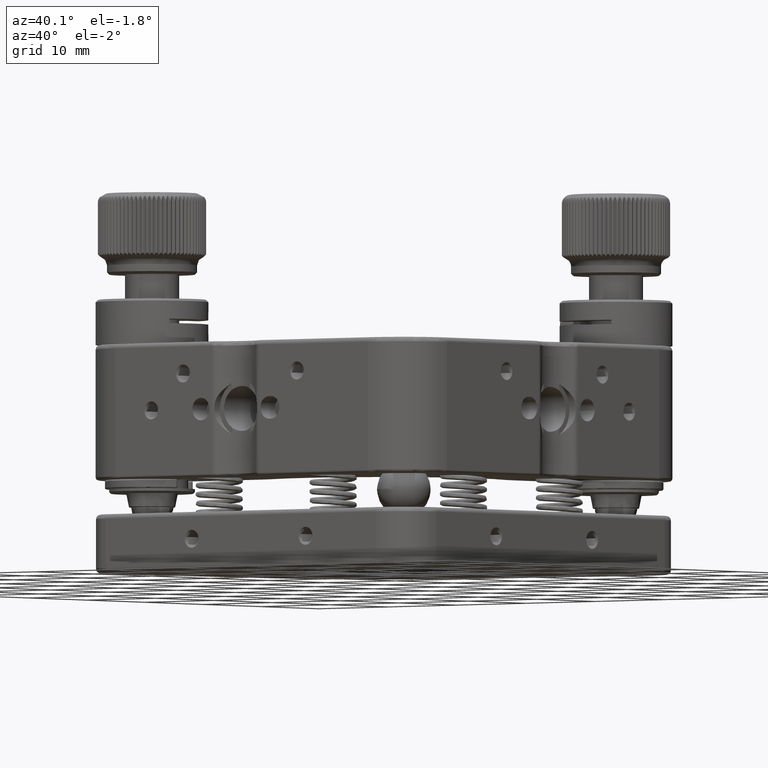
[diagram: clean part render]
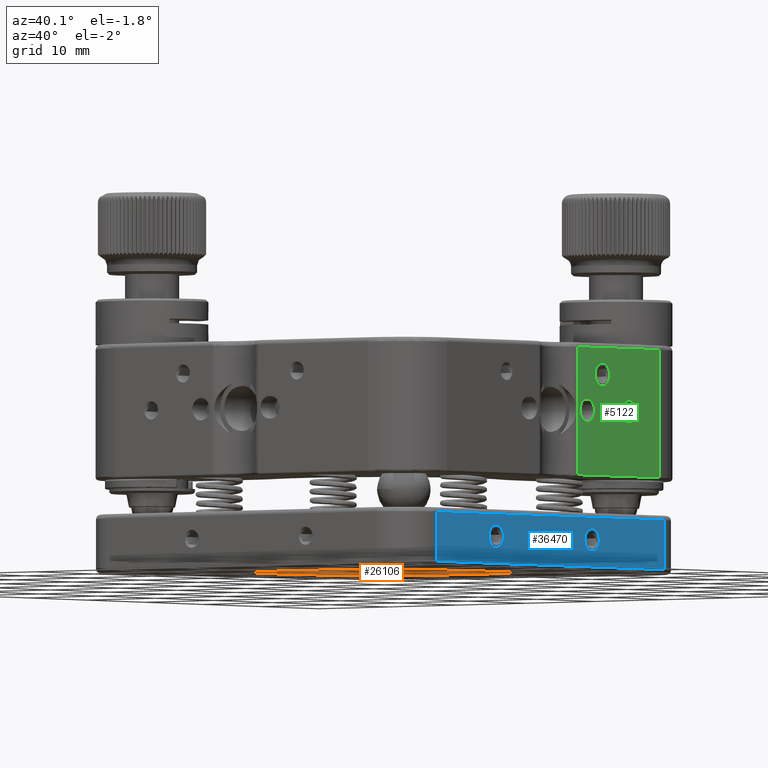
[diagram: same view with three faces highlighted in distinct colors, each labeled with its STEP entity id]
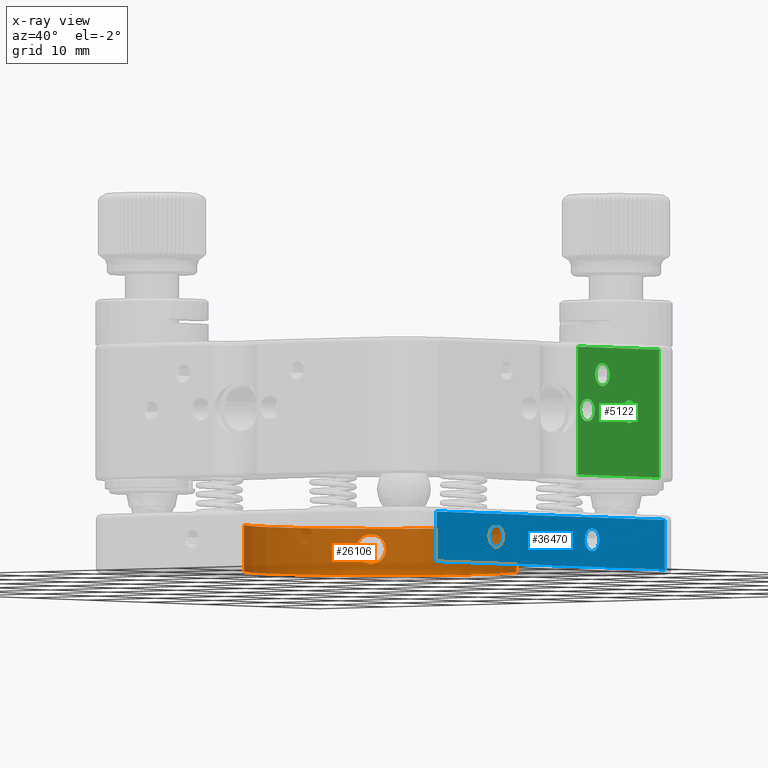
[diagram: x-ray of the same camera — body ghosted, the three highlighted faces saturated]
A machine part, auxiliary view with three faces highlighted in distinct colors.
The next image is the same camera in x-ray (body ghosted, the three faces saturated) — at least one of them is partly hidden behind the body in this view.
Their STEP definitions:

[orange] entity #26106 — the highlighted cylindrical surface (partial cylindrical patch) has radius 15.6 mm, axis along (0, 0, -1).
#74 = DIRECTION ( 'NONE',  ( -1.479070813065935758E-16, -0.000000000000000000, 1.000000000000000000 ) ) ;
#153 = DIRECTION ( 'NONE',  ( -1.000000000000000000, 0.000000000000000000, -1.112002228190260705E-16 ) ) ;
#158 = CARTESIAN_POINT ( 'NONE',  ( -12.89617749626797405, 10.87272912918535361, -15.37877628552127973 ) ) ;
#278 = CIRCLE ( 'NONE', #22479, 15.60000000000000320 ) ;
#1237 = CARTESIAN_POINT ( 'NONE',  ( -12.92943477078179093, 10.83249368249108002, -13.81814587336142885 ) ) ;
#2863 = CARTESIAN_POINT ( 'NONE',  ( -14.26387123883804087, -7.147791343464469094, -12.30000000000000249 ) ) ;
#2900 = CARTESIAN_POINT ( 'NONE',  ( -11.01698984015083838, 12.77486796080869702, -13.45945215219168567 ) ) ;
#3382 = CARTESIAN_POINT ( 'NONE',  ( -12.50018746425876515, 11.33089950316223415, -15.98193173968371816 ) ) ;
#3417 = CARTESIAN_POINT ( 'NONE',  ( -14.26387123844715887, -7.147791344350620690, -14.87500000000000000 ) ) ;
#3461 = CARTESIAN_POINT ( 'NONE',  ( -11.33089950277964064, 12.50018746460318475, -13.11806825981120461 ) ) ;
#3665 = CARTESIAN_POINT ( 'NONE',  ( -11.01718442328854408, 12.77469555878181851, -15.64070726591405780 ) ) ;
#3801 = B_SPLINE_CURVE_WITH_KNOTS ( 'NONE', 3,
 ( #55566, #43084, #21375, #13229, #21659, #29758, #17583, #44210, #3665, #30049, #48558, #30336, #43931, #43643, #17303, #39869, #39017, #47993, #3382, #8577, #21085, #52641, #7725, #158, #12372, #8864, #56709, #56426 ),
 .UNSPECIFIED., .F., .F.,
 ( 4, 2, 2, 2, 2, 2, 2, 2, 2, 2, 2, 2, 2, 4 ),
 ( 0.000000000000000000, 0.0003225692268030234456, 0.0006451384536060468912, 0.0009677076804090702826, 0.001290276907212093782, 0.001935415360818147938, 0.002580553814424202310, 0.002903123041227231339, 0.003225692268030260369, 0.003548261494833289832, 0.003870830721636318861, 0.004193399948439348324, 0.004515969175242376919, 0.005161107628848436712 ),
 .UNSPECIFIED. ) ;
#5011 = CARTESIAN_POINT ( 'NONE',  ( -10.70226419297689091, 13.03571657097689318, -14.55000000055890474 ) ) ;
#5287 = ORIENTED_EDGE ( 'NONE', *, *, #12694, .T. ) ;
#7725 = CARTESIAN_POINT ( 'NONE',  ( -12.81910175186824929, 10.96472126959706017, -15.55731241035691426 ) ) ;
#8093 = CARTESIAN_POINT ( 'NONE',  ( -10.83268001711736339, 12.92928104144850820, -13.81765729586019198 ) ) ;
#8517 = VERTEX_POINT ( 'NONE', #2863 ) ;
#8577 = CARTESIAN_POINT ( 'NONE',  ( -12.61913286895988584, 11.19708397803379540, -15.86260586277759721 ) ) ;
#8864 = CARTESIAN_POINT ( 'NONE',  ( -13.00857959025857724, 10.73611910728794250, -14.98270859638637020 ) ) ;
#9007 = VERTEX_POINT ( 'NONE', #14791 ) ;
#9411 = ORIENTED_EDGE ( 'NONE', *, *, #38025, .T. ) ;
#9636 = CARTESIAN_POINT ( 'NONE',  ( -0.8999999999999984679, 0.9000000000000000222, -12.30000000000000249 ) ) ;
#9660 = CARTESIAN_POINT ( 'NONE',  ( -12.77469555928449729, 11.01718442269879716, -13.45929273390593117 ) ) ;
#9937 = CARTESIAN_POINT ( 'NONE',  ( -12.62547952951085684, 11.19059720703238092, -13.23116850529881994 ) ) ;
#10135 = VERTEX_POINT ( 'NONE', #52652 ) ;
#10656 = CARTESIAN_POINT ( 'NONE',  ( 7.147791343634970040, 14.26387123873536389, -12.30000000000000071 ) ) ;
#11064 = AXIS2_PLACEMENT_3D ( 'NONE', #52351, #35797, #153 ) ;
#11892 = CARTESIAN_POINT ( 'NONE',  ( -10.70226419290793984, 13.03571657103258552, -14.33184606139806760 ) ) ;
#12372 = CARTESIAN_POINT ( 'NONE',  ( -12.92928104091876307, 10.83268001775894795, -15.28234270423024199 ) ) ;
#12539 = VERTEX_POINT ( 'NONE', #10656 ) ;
#12651 = CYLINDRICAL_SURFACE ( 'NONE', #11064, 15.60000000000000320 ) ;
#12694 = EDGE_CURVE ( 'NONE', #45957, #10135, #3801, .T. ) ;
#13229 = CARTESIAN_POINT ( 'NONE',  ( -10.74340552859169939, 13.00238870202707098, -14.97727416277104240 ) ) ;
#13504 = FACE_OUTER_BOUND ( 'NONE', #34781, .T. ) ;
#13941 = ORIENTED_EDGE ( 'NONE', *, *, #47733, .T. ) ;
#13985 = DIRECTION ( 'NONE',  ( -1.000000000000000000, 0.000000000000000000, -1.112002228190260705E-16 ) ) ;
#14004 = CARTESIAN_POINT ( 'NONE',  ( -13.03571657075480772, 10.70226419325184253, -14.55000000008938521 ) ) ;
#14791 = CARTESIAN_POINT ( 'NONE',  ( -14.26387123857906225, -7.147791344005455016, -17.44999999999999929 ) ) ;
#16486 = LINE ( 'NONE', #54088, #19076 ) ;
#17303 = CARTESIAN_POINT ( 'NONE',  ( -12.08271670427970435, 11.77741017178557570, -16.18937083899212936 ) ) ;
#17511 = DIRECTION ( 'NONE',  ( -1.000000000000000000, 6.950013926189129407E-18, 0.000000000000000000 ) ) ;
#17583 = CARTESIAN_POINT ( 'NONE',  ( -10.87173128035102110, 12.89700736941461123, -15.37658760324475438 ) ) ;
#17792 = CARTESIAN_POINT ( 'NONE',  ( -0.8999999999999984679, 0.9000000000000000222, -17.44999999999999929 ) ) ;
#18716 = ORIENTED_EDGE ( 'NONE', *, *, #52881, .F. ) ;
#19076 = VECTOR ( 'NONE', #53784, 1000.000000000000000 ) ;
#20885 = CARTESIAN_POINT ( 'NONE',  ( -11.62465554078573504, 12.22929690955924009, -12.95270628968948223 ) ) ;
#21085 = CARTESIAN_POINT ( 'NONE',  ( -12.67404891436861902, 11.13414601588262975, -15.79447253132260798 ) ) ;
#21375 = CARTESIAN_POINT ( 'NONE',  ( -10.71065003252000913, 13.02895670017325003, -14.76631642669597255 ) ) ;
#21659 = CARTESIAN_POINT ( 'NONE',  ( -10.76817546831022376, 12.98225329083360435, -15.08209127237178748 ) ) ;
#22429 = DIRECTION ( 'NONE',  ( -0.000000000000000000, -0.000000000000000000, 1.000000000000000000 ) ) ;
#22479 = AXIS2_PLACEMENT_3D ( 'NONE', #17792, #22429, #17511 ) ;
#23291 = CARTESIAN_POINT ( 'NONE',  ( -12.23419323587050478, 11.62079851885638426, -12.94359277523254725 ) ) ;
#25800 = CARTESIAN_POINT ( 'NONE',  ( -11.54964305612972986, 12.29978526415824192, -12.98384718555920259 ) ) ;
#26106 = ADVANCED_FACE ( 'NONE', ( #26839, #13504 ), #12651, .F. ) ;
#26437 = EDGE_CURVE ( 'NONE', #10135, #45957, #54175, .T. ) ;
#26605 = EDGE_LOOP ( 'NONE', ( #5287, #39274 ) ) ;
#26630 = VECTOR ( 'NONE', #30372, 1000.000000000000000 ) ;
#26839 = FACE_BOUND ( 'NONE', #26605, .T. ) ;
#27625 = CARTESIAN_POINT ( 'NONE',  ( -12.50349495240168984, 11.32872773062728378, -13.10825394103617825 ) ) ;
#28872 = CIRCLE ( 'NONE', #38129, 15.60000000000000320 ) ;
#29567 = CARTESIAN_POINT ( 'NONE',  ( -10.70226419297689091, 13.03571657097689318, -14.55000000055890474 ) ) ;
#29758 = CARTESIAN_POINT ( 'NONE',  ( -10.83249368314527850, 12.92943477024164523, -15.28185412676121224 ) ) ;
#29840 = CARTESIAN_POINT ( 'NONE',  ( -10.73611910664980407, 13.00857959077690928, -14.11729140391082460 ) ) ;
#30049 = CARTESIAN_POINT ( 'NONE',  ( -11.19059720753667975, 12.62547952906738047, -15.86883149432663132 ) ) ;
#30336 = CARTESIAN_POINT ( 'NONE',  ( -11.62079851908454486, 12.23419323565250671, -16.15640722412630836 ) ) ;
#30372 = DIRECTION ( 'NONE',  ( 0.000000000000000000, 0.000000000000000000, -1.000000000000000000 ) ) ;
#31685 = CARTESIAN_POINT ( 'NONE',  ( -13.00238870255133250, 10.74340552794706660, -14.12272583758993072 ) ) ;
#31976 = CARTESIAN_POINT ( 'NONE',  ( -13.02895670066677702, 10.71065003190979326, -14.33368357382240710 ) ) ;
#33353 = CARTESIAN_POINT ( 'NONE',  ( 7.147791343088001348, 14.26387123905560017, -17.44999999999999929 ) ) ;
#33911 = CARTESIAN_POINT ( 'NONE',  ( -11.13414601536464410, 12.67404891481907647, -13.30552746835092037 ) ) ;
#34757 = CARTESIAN_POINT ( 'NONE',  ( -10.87272912855911500, 12.89617749678868108, -13.72122371447743205 ) ) ;
#34781 = EDGE_LOOP ( 'NONE', ( #13941, #9411, #18716, #43876 ) ) ;
#35797 = DIRECTION ( 'NONE',  ( 1.479070813065935758E-16, 0.000000000000000000, -1.000000000000000000 ) ) ;
#36307 = CARTESIAN_POINT ( 'NONE',  ( -13.03571657098435388, 10.70226419296765030, -14.44092282747048372 ) ) ;
#36603 = CARTESIAN_POINT ( 'NONE',  ( -12.98225329136644213, 10.76817546765783895, -14.01790872790497566 ) ) ;
#38025 = EDGE_CURVE ( 'NONE', #8517, #9007, #38490, .T. ) ;
#38129 = AXIS2_PLACEMENT_3D ( 'NONE', #9636, #74, #13985 ) ;
#38490 = LINE ( 'NONE', #3417, #26630 ) ;
#39017 = CARTESIAN_POINT ( 'NONE',  ( -12.29978526393625415, 11.54964305636669764, -16.11615281381918763 ) ) ;
#39274 = ORIENTED_EDGE ( 'NONE', *, *, #26437, .T. ) ;
#39397 = VERTEX_POINT ( 'NONE', #33353 ) ;
#39869 = CARTESIAN_POINT ( 'NONE',  ( -12.22929690938266312, 11.62465554097161480, -16.14729370966331956 ) ) ;
#40943 = CARTESIAN_POINT ( 'NONE',  ( -12.08396421278638222, 11.77774432312089381, -12.90015401167703502 ) ) ;
#42294 = EDGE_CURVE ( 'NONE', #39397, #12539, #16486, .T. ) ;
#43084 = CARTESIAN_POINT ( 'NONE',  ( -10.70226419356179548, 13.03571657050444976, -14.65907717327059601 ) ) ;
#43643 = CARTESIAN_POINT ( 'NONE',  ( -12.00617829094278477, 11.85556470647652638, -16.20007637576244619 ) ) ;
#43876 = ORIENTED_EDGE ( 'NONE', *, *, #42294, .T. ) ;
#43931 = CARTESIAN_POINT ( 'NONE',  ( -11.77774432324589071, 12.08396421266191112, -16.19984598763883454 ) ) ;
#44210 = CARTESIAN_POINT ( 'NONE',  ( -10.96385381455648300, 12.81983460239933237, -15.55587590779851759 ) ) ;
#45957 = VERTEX_POINT ( 'NONE', #5011 ) ;
#47222 = CARTESIAN_POINT ( 'NONE',  ( -11.40261323489400347, 12.43538540882449439, -13.06646296888442649 ) ) ;
#47498 = CARTESIAN_POINT ( 'NONE',  ( -11.19708397757063345, 12.61913286936723289, -13.23739413681681576 ) ) ;
#47733 = EDGE_CURVE ( 'NONE', #12539, #8517, #28872, .T. ) ;
#47782 = CARTESIAN_POINT ( 'NONE',  ( -11.77741017169529592, 12.08271670436814915, -12.91062916032785779 ) ) ;
#47993 = CARTESIAN_POINT ( 'NONE',  ( -12.43538540851046470, 11.40261323523824899, -16.03353703057087998 ) ) ;
#48558 = CARTESIAN_POINT ( 'NONE',  ( -11.32872773104556074, 12.50349495202362782, -15.99174605847575314 ) ) ;
#49341 = CARTESIAN_POINT ( 'NONE',  ( -12.81983460291667321, 10.96385381394384240, -13.54412409209222190 ) ) ;
#49623 = CARTESIAN_POINT ( 'NONE',  ( -12.89700736995205865, 10.87173127970452846, -13.72341239680040559 ) ) ;
#52351 = CARTESIAN_POINT ( 'NONE',  ( -0.8999999999999984679, 0.9000000000000000222, -12.29999999999999893 ) ) ;
#52434 = CARTESIAN_POINT ( 'NONE',  ( -11.85556470644186433, 12.00617829097769018, -12.89992362354828259 ) ) ;
#52641 = CARTESIAN_POINT ( 'NONE',  ( -12.77486796032642857, 11.01698984071665599, -15.64054784759368033 ) ) ;
#52652 = CARTESIAN_POINT ( 'NONE',  ( -13.03571657075480772, 10.70226419325184253, -14.55000000008938521 ) ) ;
#52723 = CARTESIAN_POINT ( 'NONE',  ( -10.96472126900848210, 12.81910175236535743, -13.54268758949241480 ) ) ;
#52881 = EDGE_CURVE ( 'NONE', #39397, #9007, #278, .T. ) ;
#53784 = DIRECTION ( 'NONE',  ( -0.000000000000000000, -0.000000000000000000, 1.000000000000000000 ) ) ;
#54088 = CARTESIAN_POINT ( 'NONE',  ( 7.147791344691622584, 14.26387123824180847, -14.87499999999999822 ) ) ;
#54175 = B_SPLINE_CURVE_WITH_KNOTS ( 'NONE', 3,
 ( #14004, #36307, #31976, #31685, #36603, #1237, #49623, #49341, #9660, #9937, #27625, #23291, #40943, #52434, #47782, #20885, #25800, #47222, #3461, #47498, #33911, #2900, #52723, #34757, #8093, #29840, #11892, #29567 ),
 .UNSPECIFIED., .F., .F.,
 ( 4, 2, 2, 2, 2, 2, 2, 2, 2, 2, 2, 2, 2, 4 ),
 ( 1.475606767567916609E-13, 0.0003225692271670950115, 0.0006451384541866293483, 0.0009677076812061636852, 0.001290276908225698130, 0.001935415362264770490, 0.002580553816303842850, 0.002903123043323377079, 0.003225692270342911307, 0.003548261497362445969, 0.003870830724381980198, 0.004193399951401514426, 0.004515969178421048655, 0.005161107632460117112 ),
 .UNSPECIFIED. ) ;
#55566 = CARTESIAN_POINT ( 'NONE',  ( -10.70226419297689091, 13.03571657097689318, -14.55000000055890474 ) ) ;
#56426 = CARTESIAN_POINT ( 'NONE',  ( -13.03571657075480772, 10.70226419325184253, -14.55000000008938521 ) ) ;
#56709 = CARTESIAN_POINT ( 'NONE',  ( -13.03571657050796873, 10.70226419355744341, -14.76815393930029785 ) ) ;

[blue] entity #36470 — the highlighted planar face has unit normal (-1, 0, 0).
#1531 = EDGE_CURVE ( 'NONE', #2097, #45973, #49837, .T. ) ;
#1865 = CARTESIAN_POINT ( 'NONE',  ( 23.00000000000000000, -7.999999999999996447, -15.54999999999999716 ) ) ;
#2097 = VERTEX_POINT ( 'NONE', #10589 ) ;
#2445 = FACE_BOUND ( 'NONE', #11998, .T. ) ;
#2762 = CARTESIAN_POINT ( 'NONE',  ( 23.00000000000000000, -7.999999997563334908, -13.05000000000000071 ) ) ;
#3756 = DIRECTION ( 'NONE',  ( 0.000000000000000000, 0.000000000000000000, 1.000000000000000000 ) ) ;
#4878 = LINE ( 'NONE', #18219, #18465 ) ;
#5610 = ORIENTED_EDGE ( 'NONE', *, *, #36054, .F. ) ;
#5775 = AXIS2_PLACEMENT_3D ( 'NONE', #46587, #25161, #51227 ) ;
#6156 = CARTESIAN_POINT ( 'NONE',  ( 23.00000000006654943, -18.25000000027875302, -17.30000000011819949 ) ) ;
#7616 = CIRCLE ( 'NONE', #41843, 1.249999999999996003 ) ;
#7917 = VERTEX_POINT ( 'NONE', #40080 ) ;
#7986 = VERTEX_POINT ( 'NONE', #6156 ) ;
#8420 = ORIENTED_EDGE ( 'NONE', *, *, #1531, .T. ) ;
#8556 = CARTESIAN_POINT ( 'NONE',  ( 23.00000000000000000, -7.999999999999996447, -15.54999999999999716 ) ) ;
#8723 = DIRECTION ( 'NONE',  ( 1.000000000000000000, -0.000000000000000000, -0.000000000000000000 ) ) ;
#9860 = EDGE_CURVE ( 'NONE', #17970, #7917, #15989, .T. ) ;
#10564 = VERTEX_POINT ( 'NONE', #2762 ) ;
#10589 = CARTESIAN_POINT ( 'NONE',  ( 23.00000000000023093, 20.98861278799999042, -17.30000000013998829 ) ) ;
#11998 = EDGE_LOOP ( 'NONE', ( #28746, #21154 ) ) ;
#12355 = CARTESIAN_POINT ( 'NONE',  ( 22.99999999999999289, -10.49999999874999013, -15.54999999955103540 ) ) ;
#15989 = CIRCLE ( 'NONE', #5775, 1.249999999999990674 ) ;
#16514 = AXIS2_PLACEMENT_3D ( 'NONE', #33454, #51128, #24780 ) ;
#16523 = DIRECTION ( 'NONE',  ( 0.000000000000000000, 1.000000000000000000, 0.000000000000000000 ) ) ;
#17051 = ORIENTED_EDGE ( 'NONE', *, *, #28884, .F. ) ;
#17388 = LINE ( 'NONE', #26371, #53727 ) ;
#17720 = CARTESIAN_POINT ( 'NONE',  ( 22.99999999999999645, -7.999999999999991118, -14.29999999999999893 ) ) ;
#17953 = VERTEX_POINT ( 'NONE', #1865 ) ;
#17970 = VERTEX_POINT ( 'NONE', #32589 ) ;
#18219 = CARTESIAN_POINT ( 'NONE',  ( 23.00000000000000000, 1.369306394000000093, -11.79999999999999893 ) ) ;
#18465 = VECTOR ( 'NONE', #35887, 1000.000000000000000 ) ;
#19921 = ORIENTED_EDGE ( 'NONE', *, *, #26755, .F. ) ;
#21154 = ORIENTED_EDGE ( 'NONE', *, *, #9860, .F. ) ;
#22559 = CARTESIAN_POINT ( 'NONE',  ( 23.00000000000000000, 8.500000000000003553, -15.54999999999999893 ) ) ;
#24780 = DIRECTION ( 'NONE',  ( 0.000000000000000000, 0.000000000000000000, 1.000000000000000000 ) ) ;
#24882 =( BOUNDED_CURVE ( )  B_SPLINE_CURVE ( 3, ( #43624, #52051, #12355, #8556 ),
 .UNSPECIFIED., .F., .F. ) 
 B_SPLINE_CURVE_WITH_KNOTS ( ( 4, 4 ),
 ( 2.907560734690652508E-12, 0.003907269273745669035 ),
 .UNSPECIFIED. ) 
 CURVE ( )  GEOMETRIC_REPRESENTATION_ITEM ( )  RATIONAL_B_SPLINE_CURVE ( ( 1.000000000000000000, 0.3333333335299311084, 0.3333333335299311084, 1.000000000000000000 ) ) 
 REPRESENTATION_ITEM ( '' )  );
#25161 = DIRECTION ( 'NONE',  ( 1.000000000000000000, -0.000000000000000000, -0.000000000000000000 ) ) ;
#25337 = EDGE_CURVE ( 'NONE', #7986, #2097, #33611, .T. ) ;
#26371 = CARTESIAN_POINT ( 'NONE',  ( 23.00000000000000000, -18.25000000000000000, -14.55000000000000071 ) ) ;
#26755 = EDGE_CURVE ( 'NONE', #35343, #45973, #4878, .T. ) ;
#27832 = CARTESIAN_POINT ( 'NONE',  ( 23.00000000000000000, 20.98861278799999752, -14.55000000000000071 ) ) ;
#28188 = CARTESIAN_POINT ( 'NONE',  ( 23.00000000000000000, 20.98861279196020746, -11.79999999999999893 ) ) ;
#28746 = ORIENTED_EDGE ( 'NONE', *, *, #55675, .F. ) ;
#28884 = EDGE_CURVE ( 'NONE', #17953, #10564, #7616, .T. ) ;
#29827 = CARTESIAN_POINT ( 'NONE',  ( 23.00000000000000000, 1.369306393999998317, -17.30000000010255334 ) ) ;
#32284 = VECTOR ( 'NONE', #16523, 1000.000000000000000 ) ;
#32393 = EDGE_LOOP ( 'NONE', ( #5610, #17051 ) ) ;
#32589 = CARTESIAN_POINT ( 'NONE',  ( 23.00000000000000000, 8.500000000000003553, -15.54999999999999893 ) ) ;
#33454 = CARTESIAN_POINT ( 'NONE',  ( 23.00000000000000000, -18.25000000000000000, -17.30000000000000071 ) ) ;
#33611 = LINE ( 'NONE', #29827, #32284 ) ;
#33743 = FACE_OUTER_BOUND ( 'NONE', #48808, .T. ) ;
#35343 = VERTEX_POINT ( 'NONE', #44603 ) ;
#35887 = DIRECTION ( 'NONE',  ( 0.000000000000000000, 1.000000000000000000, 0.000000000000000000 ) ) ;
#36054 = EDGE_CURVE ( 'NONE', #10564, #17953, #24882, .T. ) ;
#36470 = ADVANCED_FACE ( 'NONE', ( #33743, #2445, #37800 ), #55481, .F. ) ;
#37800 = FACE_BOUND ( 'NONE', #32393, .T. ) ;
#40080 = CARTESIAN_POINT ( 'NONE',  ( 23.00000000000000000, 8.500000000128752120, -13.05000000000000071 ) ) ;
#41843 = AXIS2_PLACEMENT_3D ( 'NONE', #17720, #8723, #53051 ) ;
#42897 =( BOUNDED_CURVE ( )  B_SPLINE_CURVE ( 3, ( #53255, #49178, #48617, #22559 ),
 .UNSPECIFIED., .F., .F. ) 
 B_SPLINE_CURVE_WITH_KNOTS ( ( 4, 4 ),
 ( 6.324027942760700155E-13, 0.003907269269798323112 ),
 .UNSPECIFIED. ) 
 CURVE ( )  GEOMETRIC_REPRESENTATION_ITEM ( )  RATIONAL_B_SPLINE_CURVE ( ( 1.000000000000000000, 0.3333333335299311084, 0.3333333335299311084, 1.000000000000000000 ) ) 
 REPRESENTATION_ITEM ( '' )  );
#43624 = CARTESIAN_POINT ( 'NONE',  ( 23.00000000000000000, -7.999999997563334908, -13.05000000000000071 ) ) ;
#44603 = CARTESIAN_POINT ( 'NONE',  ( 23.00000000000000000, -18.25000000000000000, -11.79999999997436078 ) ) ;
#45490 = DIRECTION ( 'NONE',  ( 0.000000000000000000, 0.000000000000000000, 1.000000000000000000 ) ) ;
#45829 = ORIENTED_EDGE ( 'NONE', *, *, #57123, .F. ) ;
#45973 = VERTEX_POINT ( 'NONE', #28188 ) ;
#46587 = CARTESIAN_POINT ( 'NONE',  ( 23.00000000000000000, 8.500000000000008882, -14.30000000000000959 ) ) ;
#48617 = CARTESIAN_POINT ( 'NONE',  ( 22.99999999999999289, 6.000000001250000992, -15.54999999955104073 ) ) ;
#48808 = EDGE_LOOP ( 'NONE', ( #48927, #8420, #19921, #45829 ) ) ;
#48927 = ORIENTED_EDGE ( 'NONE', *, *, #25337, .T. ) ;
#49178 = CARTESIAN_POINT ( 'NONE',  ( 22.99999999999999289, 6.000000000961726698, -13.05000000102551994 ) ) ;
#49837 = LINE ( 'NONE', #27832, #50765 ) ;
#50765 = VECTOR ( 'NONE', #45490, 1000.000000000000000 ) ;
#51128 = DIRECTION ( 'NONE',  ( -1.000000000000000000, 0.000000000000000000, 0.000000000000000000 ) ) ;
#51227 = DIRECTION ( 'NONE',  ( 0.000000000000000000, 0.000000000000000000, -1.000000000000000000 ) ) ;
#52051 = CARTESIAN_POINT ( 'NONE',  ( 22.99999999999999289, -10.49999999903827508, -13.05000000102552349 ) ) ;
#53051 = DIRECTION ( 'NONE',  ( 0.000000000000000000, 0.000000000000000000, -1.000000000000000000 ) ) ;
#53255 = CARTESIAN_POINT ( 'NONE',  ( 23.00000000000000000, 8.500000000128752120, -13.05000000000000071 ) ) ;
#53727 = VECTOR ( 'NONE', #3756, 1000.000000000000000 ) ;
#55481 = PLANE ( 'NONE',  #16514 ) ;
#55675 = EDGE_CURVE ( 'NONE', #7917, #17970, #42897, .T. ) ;
#57123 = EDGE_CURVE ( 'NONE', #7986, #35343, #17388, .T. ) ;

[green] entity #5122 — the highlighted planar face has unit normal (-1, 0, 0).
#138 = EDGE_CURVE ( 'NONE', #15432, #16597, #30112, .T. ) ;
#317 = EDGE_CURVE ( 'NONE', #16597, #15432, #48666, .T. ) ;
#1964 = LINE ( 'NONE', #37322, #48367 ) ;
#2845 = EDGE_LOOP ( 'NONE', ( #16283 ) ) ;
#5122 = ADVANCED_FACE ( 'NONE', ( #39402, #30148, #44027, #47798 ), #30710, .F. ) ;
#5904 = CARTESIAN_POINT ( 'NONE',  ( 24.49999999999998934, 5.899999999999976374, 2.174094056518758572E-14 ) ) ;
#5966 = CARTESIAN_POINT ( 'NONE',  ( 24.50000000000001421, 18.25000000000000355, -7.200000000000034817 ) ) ;
#7842 = CARTESIAN_POINT ( 'NONE',  ( 24.50000000000000000, 4.276388603000001787, -0.1000000000000002554 ) ) ;
#8049 = CIRCLE ( 'NONE', #54339, 1.249999999999999334 ) ;
#9801 = EDGE_CURVE ( 'NONE', #42417, #49448, #14446, .T. ) ;
#10121 = CARTESIAN_POINT ( 'NONE',  ( 24.49999999999999645, 8.499999999335170031, 2.750000000000000888 ) ) ;
#10132 = ORIENTED_EDGE ( 'NONE', *, *, #317, .F. ) ;
#10523 = DIRECTION ( 'NONE',  ( 8.326672684688678786E-15, 1.000000000000000000, 0.000000000000000000 ) ) ;
#10715 = CARTESIAN_POINT ( 'NONE',  ( 24.49999999999998224, 8.499999999999948486, 4.000000000000047073 ) ) ;
#11082 = LINE ( 'NONE', #23851, #25759 ) ;
#11638 = ORIENTED_EDGE ( 'NONE', *, *, #43817, .F. ) ;
#12495 = CARTESIAN_POINT ( 'NONE',  ( 24.49999999999998579, 6.000000000961729363, 5.249999998974483439 ) ) ;
#12751 = CARTESIAN_POINT ( 'NONE',  ( 24.50000000000000000, 18.25000000000000000, -7.200000000000001066 ) ) ;
#14446 = LINE ( 'NONE', #32698, #36577 ) ;
#15134 = EDGE_LOOP ( 'NONE', ( #37575, #16673, #33262, #52858 ) ) ;
#15432 = VERTEX_POINT ( 'NONE', #23100 ) ;
#15699 = CARTESIAN_POINT ( 'NONE',  ( 24.50000000000000000, 4.276388603000001787, -7.200000000030765790 ) ) ;
#16283 = ORIENTED_EDGE ( 'NONE', *, *, #55980, .F. ) ;
#16287 = DIRECTION ( 'NONE',  ( 0.000000000000000000, 0.000000000000000000, 1.000000000000000000 ) ) ;
#16597 = VERTEX_POINT ( 'NONE', #10121 ) ;
#16673 = ORIENTED_EDGE ( 'NONE', *, *, #45086, .F. ) ;
#19671 = DIRECTION ( 'NONE',  ( 0.000000000000000000, -1.000000000000000000, 0.000000000000000000 ) ) ;
#20815 = DIRECTION ( 'NONE',  ( 0.000000000000000000, -1.000000000000000000, 0.000000000000000000 ) ) ;
#21783 = CARTESIAN_POINT ( 'NONE',  ( 24.49999999999998579, 6.000000001250003656, 2.750000000448969750 ) ) ;
#23100 = CARTESIAN_POINT ( 'NONE',  ( 24.49999999999998224, 8.499999998137667490, 5.250000000000023981 ) ) ;
#23551 = EDGE_CURVE ( 'NONE', #42417, #24004, #11082, .T. ) ;
#23726 = AXIS2_PLACEMENT_3D ( 'NONE', #10715, #28392, #46915 ) ;
#23851 = CARTESIAN_POINT ( 'NONE',  ( 24.50000000000000000, 18.25000000000000000, -0.1000000000000002554 ) ) ;
#24004 = VERTEX_POINT ( 'NONE', #37097 ) ;
#24762 = AXIS2_PLACEMENT_3D ( 'NONE', #12751, #56812, #30435 ) ;
#25100 = VERTEX_POINT ( 'NONE', #25670 ) ;
#25670 = CARTESIAN_POINT ( 'NONE',  ( 24.49999999999999645, 14.34999999999994991, 4.953806002943188778E-14 ) ) ;
#25759 = VECTOR ( 'NONE', #28756, 1000.000000000000000 ) ;
#28392 = DIRECTION ( 'NONE',  ( 1.000000000000000000, -1.421451940244120323E-14, 1.421451939952571848E-14 ) ) ;
#28756 = DIRECTION ( 'NONE',  ( 0.000000000000000000, 0.000000000000000000, 1.000000000000000000 ) ) ;
#29641 = EDGE_CURVE ( 'NONE', #24004, #43202, #1964, .T. ) ;
#30112 =( BOUNDED_CURVE ( )  B_SPLINE_CURVE ( 3, ( #43199, #12495, #21783, #35362 ),
 .UNSPECIFIED., .F., .F. ) 
 B_SPLINE_CURVE_WITH_KNOTS ( ( 4, 4 ),
 ( 2.660806454109044855E-13, 0.003907269266975453570 ),
 .UNSPECIFIED. ) 
 CURVE ( )  GEOMETRIC_REPRESENTATION_ITEM ( )  RATIONAL_B_SPLINE_CURVE ( ( 1.000000000000000000, 0.3333333335299311084, 0.3333333335299311084, 1.000000000000000000 ) ) 
 REPRESENTATION_ITEM ( '' )  );
#30148 = FACE_BOUND ( 'NONE', #52954, .T. ) ;
#30435 = DIRECTION ( 'NONE',  ( 0.000000000000000000, -1.000000000000000000, 0.000000000000000000 ) ) ;
#30710 = PLANE ( 'NONE',  #24762 ) ;
#31434 = DIRECTION ( 'NONE',  ( 1.000000000000000000, -9.476346268294134963E-15, 9.476346266350473201E-15 ) ) ;
#31869 = AXIS2_PLACEMENT_3D ( 'NONE', #54282, #42110, #10523 ) ;
#32698 = CARTESIAN_POINT ( 'NONE',  ( 24.50000000000000000, 11.26319430149999867, -7.200000000000001066 ) ) ;
#33262 = ORIENTED_EDGE ( 'NONE', *, *, #9801, .F. ) ;
#35362 = CARTESIAN_POINT ( 'NONE',  ( 24.49999999999999645, 8.499999999335170031, 2.750000000000000888 ) ) ;
#36577 = VECTOR ( 'NONE', #19671, 1000.000000000000000 ) ;
#37097 = CARTESIAN_POINT ( 'NONE',  ( 24.50000000013309531, 18.25000000137969991, 7.000000000069767303 ) ) ;
#37262 = CARTESIAN_POINT ( 'NONE',  ( 24.50000000000000000, 7.149999999999975486, 2.174094056518758572E-14 ) ) ;
#37322 = CARTESIAN_POINT ( 'NONE',  ( 24.50000000000000000, 11.26319430149999867, 7.000000000000000000 ) ) ;
#37489 = EDGE_LOOP ( 'NONE', ( #49530, #10132 ) ) ;
#37575 = ORIENTED_EDGE ( 'NONE', *, *, #29641, .T. ) ;
#38358 = CIRCLE ( 'NONE', #31869, 1.249999999999999334 ) ;
#39402 = FACE_OUTER_BOUND ( 'NONE', #15134, .T. ) ;
#40684 = DIRECTION ( 'NONE',  ( 8.326672684688678786E-15, 1.000000000000000000, 0.000000000000000000 ) ) ;
#42110 = DIRECTION ( 'NONE',  ( 1.000000000000000000, -9.476346268294078165E-15, 9.476346266350465312E-15 ) ) ;
#42417 = VERTEX_POINT ( 'NONE', #5966 ) ;
#43199 = CARTESIAN_POINT ( 'NONE',  ( 24.49999999999998224, 8.499999998137667490, 5.250000000000023981 ) ) ;
#43202 = VERTEX_POINT ( 'NONE', #44322 ) ;
#43817 = EDGE_CURVE ( 'NONE', #49707, #49707, #8049, .T. ) ;
#44027 = FACE_BOUND ( 'NONE', #2845, .T. ) ;
#44322 = CARTESIAN_POINT ( 'NONE',  ( 24.49999999999999645, 4.276388602970069286, 7.000000000000000000 ) ) ;
#45086 = EDGE_CURVE ( 'NONE', #49448, #43202, #46971, .T. ) ;
#46915 = DIRECTION ( 'NONE',  ( 1.387778780781446464E-14, 1.000000000000000000, 0.000000000000000000 ) ) ;
#46971 = LINE ( 'NONE', #7842, #52410 ) ;
#47798 = FACE_BOUND ( 'NONE', #37489, .T. ) ;
#48367 = VECTOR ( 'NONE', #20815, 1000.000000000000000 ) ;
#48666 = CIRCLE ( 'NONE', #23726, 1.249999999999999334 ) ;
#49448 = VERTEX_POINT ( 'NONE', #15699 ) ;
#49530 = ORIENTED_EDGE ( 'NONE', *, *, #138, .F. ) ;
#49707 = VERTEX_POINT ( 'NONE', #37262 ) ;
#52410 = VECTOR ( 'NONE', #16287, 1000.000000000000000 ) ;
#52858 = ORIENTED_EDGE ( 'NONE', *, *, #23551, .T. ) ;
#52954 = EDGE_LOOP ( 'NONE', ( #11638 ) ) ;
#54282 = CARTESIAN_POINT ( 'NONE',  ( 24.49999999999998579, 13.09999999999994991, 4.953806002943188778E-14 ) ) ;
#54339 = AXIS2_PLACEMENT_3D ( 'NONE', #5904, #31434, #40684 ) ;
#55980 = EDGE_CURVE ( 'NONE', #25100, #25100, #38358, .T. ) ;
#56812 = DIRECTION ( 'NONE',  ( -1.000000000000000000, 0.000000000000000000, 0.000000000000000000 ) ) ;